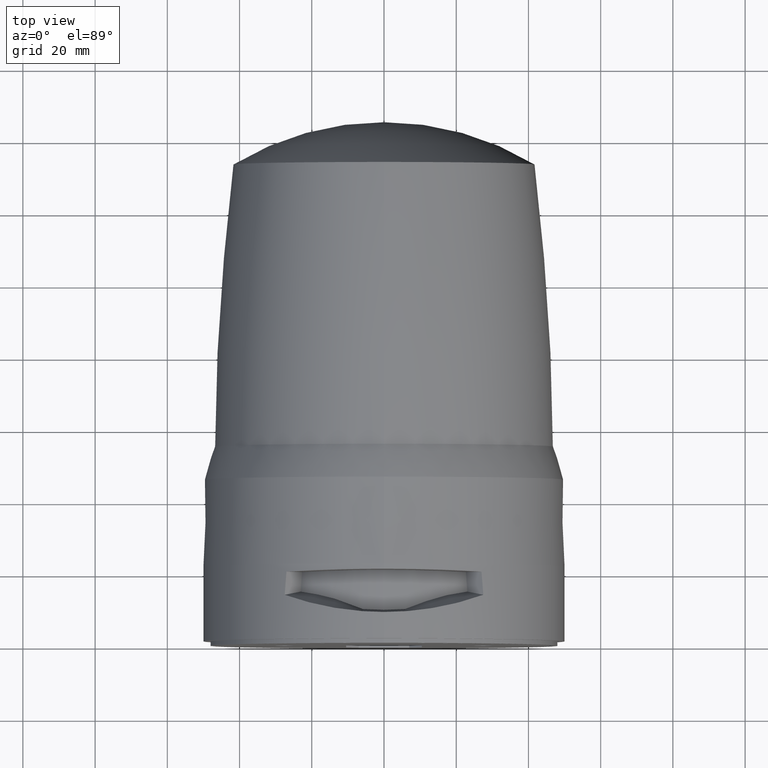
[diagram: clean part render]
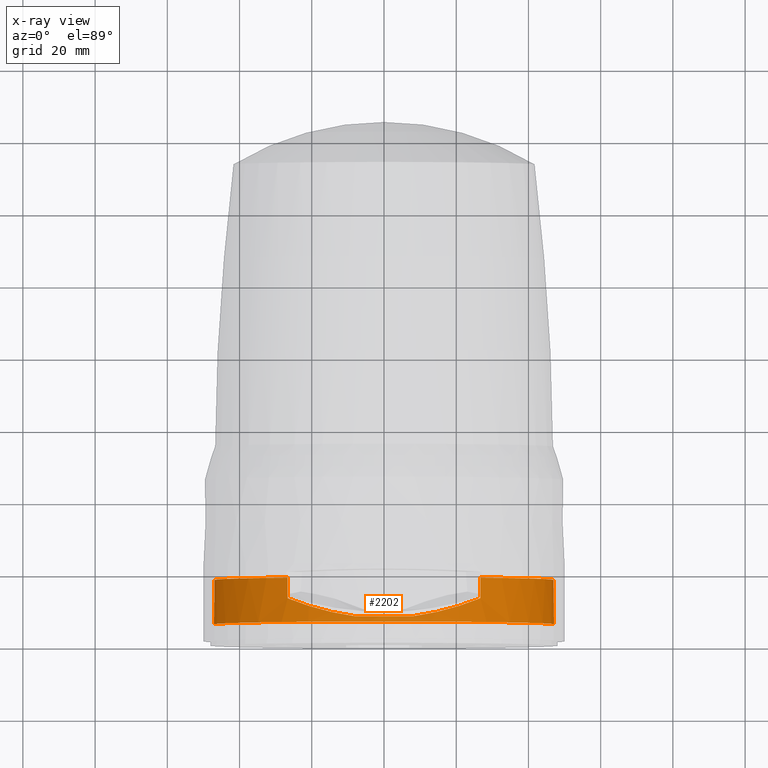
[diagram: x-ray — body ghosted, one internal face saturated and labeled with its STEP entity id]
A machine part, top view, then the same camera in x-ray: the body is ghosted and one INTERNAL B-rep face — a face not visible from any outside direction — is saturated and labeled: STEP entity #2202.
In plain terms, the highlighted conical surface has half-angle 0.5 deg.
Its self-contained STEP definition (entity closure, byte-faithful):
#17 = VERTEX_POINT ( 'NONE', #10055 ) ;
#334 = VERTEX_POINT ( 'NONE', #573 ) ;
#465 = CARTESIAN_POINT ( 'NONE',  ( 8.068156466654869519, 7.362056360975920200, 46.36732097950200426 ) ) ;
#530 = CIRCLE ( 'NONE', #9549, 46.96945596273229739 ) ;
#532 = CARTESIAN_POINT ( 'NONE',  ( -8.070403007079349322, 7.362066601149209966, 46.36692992293319548 ) ) ;
#573 = CARTESIAN_POINT ( 'NONE',  ( -26.71172798787065261, 18.19999999999999929, 38.63435493621015127 ) ) ;
#595 = CARTESIAN_POINT ( 'NONE',  ( -17.94062159174335491, 9.431635815426464120, 43.49089706922463705 ) ) ;
#865 = CARTESIAN_POINT ( 'NONE',  ( 20.78730762843719404, 10.27724571481722471, 42.22889325729695287 ) ) ;
#867 = B_SPLINE_CURVE_WITH_KNOTS ( 'NONE', 3,
 ( #6139, #10349, #901, #13530 ),
 .UNSPECIFIED., .F., .F.,
 ( 4, 4 ),
 ( 0.1122136300888813970, 0.1179470047999371940 ),
 .UNSPECIFIED. ) ;
#875 = CARTESIAN_POINT ( 'NONE',  ( 46.96945596273229739, 18.19999999999999929, 5.925591757886269678E-16 ) ) ;
#901 = CARTESIAN_POINT ( 'NONE',  ( 26.69704003197454867, 16.28917375606690143, 38.66478332520159711 ) ) ;
#938 = VERTEX_POINT ( 'NONE', #4971 ) ;
#1081 = VERTEX_POINT ( 'NONE', #7436 ) ;
#1409 =( BOUNDED_CURVE ( )  B_SPLINE_CURVE ( 3, ( #7199, #8167, #11411, #2932 ),
 .UNSPECIFIED., .F., .F. ) 
 B_SPLINE_CURVE_WITH_KNOTS ( ( 4, 4 ),
 ( 6.110817369497430818, 6.455504782474600134 ),
 .UNSPECIFIED. ) 
 CURVE ( )  GEOMETRIC_REPRESENTATION_ITEM ( )  RATIONAL_B_SPLINE_CURVE ( ( 1.000000000000000000, 0.9901236977437610776, 0.9901236977437610776, 1.000000000000000000 ) ) 
 REPRESENTATION_ITEM ( '' )  );
#1546 = CARTESIAN_POINT ( 'NONE',  ( -4.592996408837750682E-44, 14.69999999999999929, 5.925591757886269678E-16 ) ) ;
#1636 = CARTESIAN_POINT ( 'NONE',  ( -11.30728191937716964, 7.813489942897440699, 45.79953573311116344 ) ) ;
#1698 = CARTESIAN_POINT ( 'NONE',  ( -17.91850772786099810, 9.425420781216693911, 43.50007143824421263 ) ) ;
#1856 = VERTEX_POINT ( 'NONE', #7834 ) ;
#1958 = LINE ( 'NONE', #8099, #10256 ) ;
#2007 = DIRECTION ( 'NONE',  ( 1.000000000000000000, 0.000000000000000000, 0.000000000000000000 ) ) ;
#2098 = CARTESIAN_POINT ( 'NONE',  ( 19.34266681499561713, 9.825573947436152977, 42.90914274113197990 ) ) ;
#2202 = ADVANCED_FACE ( 'NONE', ( #12037 ), #8578, .F. ) ;
#2471 = EDGE_LOOP ( 'NONE', ( #9351, #10546, #9804, #8431, #7520, #2964, #12615, #7238, #13575, #5279 ) ) ;
#2605 = CARTESIAN_POINT ( 'NONE',  ( -14.61698309588898326, 8.499206384008457960, 44.86681348944074443 ) ) ;
#2875 = EDGE_CURVE ( 'NONE', #13379, #334, #530, .T. ) ;
#2895 = CARTESIAN_POINT ( 'NONE',  ( 47.07679643655865220, 5.899999999999999467, 5.925591757886269678E-16 ) ) ;
#2932 = CARTESIAN_POINT ( 'NONE',  ( 8.068156466654869519, 7.362056360975920200, 46.36732097950200426 ) ) ;
#2939 = CARTESIAN_POINT ( 'NONE',  ( 25.19119281023192158, 11.85145429229211977, 39.74880950462495122 ) ) ;
#2964 = ORIENTED_EDGE ( 'NONE', *, *, #4119, .T. ) ;
#3124 = DIRECTION ( 'NONE',  ( 0.000000000000000000, 1.000000000000000000, 0.000000000000000000 ) ) ;
#3282 = EDGE_CURVE ( 'NONE', #9422, #10446, #8898, .T. ) ;
#3381 = EDGE_CURVE ( 'NONE', #8473, #938, #867, .T. ) ;
#3428 = CARTESIAN_POINT ( 'NONE',  ( -26.71172798787065261, 18.19999999999999929, 38.63435493621015127 ) ) ;
#3523 = VECTOR ( 'NONE', #5892, 1000.000000000000114 ) ;
#3562 = CIRCLE ( 'NONE', #10596, 46.96945596273229739 ) ;
#3637 = CARTESIAN_POINT ( 'NONE',  ( 11.34417351153228992, 7.875448661160143971, 45.70399749410995582 ) ) ;
#3703 = CARTESIAN_POINT ( 'NONE',  ( 16.49453011386749424, 9.037742344641761960, 44.06719150023146625 ) ) ;
#3741 = CARTESIAN_POINT ( 'NONE',  ( -47.07679643655865220, 5.899999999999999467, 6.357803982802935763E-15 ) ) ;
#4030 = CARTESIAN_POINT ( 'NONE',  ( 17.75247773063216528, 9.378431158500958986, 43.56859521507095678 ) ) ;
#4119 = EDGE_CURVE ( 'NONE', #1856, #8473, #8857, .T. ) ;
#4157 = AXIS2_PLACEMENT_3D ( 'NONE', #1546, #5823, #8020 ) ;
#4211 = CARTESIAN_POINT ( 'NONE',  ( -46.96945596273229739, 18.19999999999999929, 6.351231274418415680E-15 ) ) ;
#4387 = CARTESIAN_POINT ( 'NONE',  ( -26.66759053786960010, 12.46756921688619890, 38.72558991826590358 ) ) ;
#4672 = CARTESIAN_POINT ( 'NONE',  ( 13.81649625575239604, 8.392109695638167111, 44.98908673091464294 ) ) ;
#4888 = B_SPLINE_CURVE_WITH_KNOTS ( 'NONE', 3,
 ( #3428, #5418, #5354, #4387 ),
 .UNSPECIFIED., .F., .F.,
 ( 4, 4 ),
 ( 0.1100670683433219998, 0.1158003948434853936 ),
 .UNSPECIFIED. ) ;
#4904 = EDGE_CURVE ( 'NONE', #334, #17, #4888, .T. ) ;
#4971 = CARTESIAN_POINT ( 'NONE',  ( 26.71172853925980206, 18.19999999999999929, 38.63435455498054694 ) ) ;
#5069 = DIRECTION ( 'NONE',  ( -0.008726535498371532085, -0.9999619230641713097, 1.068692376572644682E-18 ) ) ;
#5173 = DIRECTION ( 'NONE',  ( 0.000000000000000000, 0.000000000000000000, 1.000000000000000000 ) ) ;
#5279 = ORIENTED_EDGE ( 'NONE', *, *, #3282, .F. ) ;
#5306 = DIRECTION ( 'NONE',  ( 0.000000000000000000, 1.000000000000000000, 0.000000000000000000 ) ) ;
#5308 = EDGE_CURVE ( 'NONE', #13379, #9422, #1958, .T. ) ;
#5354 = CARTESIAN_POINT ( 'NONE',  ( -26.68232711345790165, 14.37837955915132149, 38.69519510356860081 ) ) ;
#5418 = CARTESIAN_POINT ( 'NONE',  ( -26.69703960563555256, 16.28918982065020060, 38.66478344902255060 ) ) ;
#5702 = CARTESIAN_POINT ( 'NONE',  ( -17.90921042412810138, 9.422809711749739137, 43.50392521671429336 ) ) ;
#5823 = DIRECTION ( 'NONE',  ( 0.000000000000000000, -1.000000000000000000, 0.000000000000000000 ) ) ;
#5892 = DIRECTION ( 'NONE',  ( 0.008726535498371532085, -0.9999619230641713097, 0.000000000000000000 ) ) ;
#6035 = CARTESIAN_POINT ( 'NONE',  ( 26.66759071285754956, 12.46752101617195940, 38.72559030849440376 ) ) ;
#6084 = DIRECTION ( 'NONE',  ( 0.000000000000000000, 1.000000000000000000, 0.000000000000000000 ) ) ;
#6106 = CARTESIAN_POINT ( 'NONE',  ( 17.88065520989724888, 9.414298556526986772, 43.51574985520899475 ) ) ;
#6139 = CARTESIAN_POINT ( 'NONE',  ( 26.66759071285754956, 12.46752101617195940, 38.72559030849440376 ) ) ;
#6322 = EDGE_CURVE ( 'NONE', #17, #1081, #7984, .T. ) ;
#6732 = CARTESIAN_POINT ( 'NONE',  ( -20.76545643205895075, 10.28248157912845606, 42.21446350420363558 ) ) ;
#6864 = CARTESIAN_POINT ( 'NONE',  ( -21.49500852309651222, 10.52261537384498524, 41.84601040679098105 ) ) ;
#7054 = LINE ( 'NONE', #13214, #3523 ) ;
#7066 = CARTESIAN_POINT ( 'NONE',  ( 17.90628662131311089, 9.421494172205807871, 43.50514115705107088 ) ) ;
#7138 = CARTESIAN_POINT ( 'NONE',  ( 17.84220610231017901, 9.403515844012112268, 43.53164372360911472 ) ) ;
#7199 = CARTESIAN_POINT ( 'NONE',  ( -8.070403007079349322, 7.362066601149209966, 46.36692992293319548 ) ) ;
#7238 = ORIENTED_EDGE ( 'NONE', *, *, #11564, .T. ) ;
#7436 = CARTESIAN_POINT ( 'NONE',  ( -8.070403007079349322, 7.362066601149209966, 46.36692992293319548 ) ) ;
#7520 = ORIENTED_EDGE ( 'NONE', *, *, #12874, .T. ) ;
#7834 = CARTESIAN_POINT ( 'NONE',  ( 8.068156466654869519, 7.362056360975920200, 46.36732097950200426 ) ) ;
#7840 = CARTESIAN_POINT ( 'NONE',  ( 14.64128959053467227, 8.578954130390822996, 44.72604050961253819 ) ) ;
#7899 = CARTESIAN_POINT ( 'NONE',  ( 17.21373891288812885, 9.230022402093430500, 43.78655262397566617 ) ) ;
#7984 = B_SPLINE_CURVE_WITH_KNOTS ( 'NONE', 3,
 ( #12126, #11989, #10117, #6864, #6732, #9844, #9982, #11156, #8815, #12055, #12256, #9914, #595, #1698, #5702, #2605, #1636, #532 ),
 .UNSPECIFIED., .F., .F.,
 ( 4, 2, 2, 2, 1, 1, 1, 1, 2, 2, 4 ),
 ( 0.000000000000000000, 0.2499999999999912292, 0.3749999999999867883, 0.4374999999999847344, 0.4687499999999835132, 0.4843749999999828471, 0.4921874999999822919, 0.4960937499999817923, 0.4980468749999816258, 0.4999999999999814593, 1.000000000000000000 ),
 .UNSPECIFIED. ) ;
#8020 = DIRECTION ( 'NONE',  ( 1.000000000000000000, 0.000000000000000000, 0.000000000000000000 ) ) ;
#8099 = CARTESIAN_POINT ( 'NONE',  ( -47.00000000000000000, 14.69999999999999929, 6.348399131781187707E-15 ) ) ;
#8167 = CARTESIAN_POINT ( 'NONE',  ( -2.717735621527407108, 7.337664582738626429, 47.29880540989879734 ) ) ;
#8308 = CARTESIAN_POINT ( 'NONE',  ( 17.92089454484693078, 9.425599925071219687, 43.49908648497697783 ) ) ;
#8431 = ORIENTED_EDGE ( 'NONE', *, *, #6322, .T. ) ;
#8436 = EDGE_CURVE ( 'NONE', #13578, #10446, #7054, .T. ) ;
#8473 = VERTEX_POINT ( 'NONE', #10104 ) ;
#8578 = CONICAL_SURFACE ( 'NONE', #4157, 47.00000000000000000, 0.008726646259969245145 ) ;
#8815 = CARTESIAN_POINT ( 'NONE',  ( -18.51721984063122406, 9.595896595908630644, 43.24774014606128247 ) ) ;
#8857 = B_SPLINE_CURVE_WITH_KNOTS ( 'NONE', 3,
 ( #465, #9005, #3637, #4672, #7840, #8939, #3703, #7899, #13224, #4030, #7138, #6106, #7066, #8308, #2098, #865, #10318, #2939, #6035 ),
 .UNSPECIFIED., .F., .F.,
 ( 4, 2, 2, 1, 1, 1, 1, 1, 2, 2, 2, 4 ),
 ( 0.000000000000000000, 0.2499999999999745204, 0.3749999999999616973, 0.4374999999999550915, 0.4687499999999515388, 0.4843749999999497624, 0.4921874999999485967, 0.4960937499999482081, 0.4980468749999480971, 0.4999999999999479305, 0.7499999999999739098, 1.000000000000000000 ),
 .UNSPECIFIED. ) ;
#8898 = CIRCLE ( 'NONE', #12427, 47.07679643655870194 ) ;
#8939 = CARTESIAN_POINT ( 'NONE',  ( 15.87702715608856074, 8.881156917409784413, 44.29318708634006896 ) ) ;
#9005 = CARTESIAN_POINT ( 'NONE',  ( 9.698819395125756415, 7.589504331214729227, 46.08156236389395843 ) ) ;
#9351 = ORIENTED_EDGE ( 'NONE', *, *, #5308, .F. ) ;
#9422 = VERTEX_POINT ( 'NONE', #3741 ) ;
#9549 = AXIS2_PLACEMENT_3D ( 'NONE', #12711, #3124, #12639 ) ;
#9804 = ORIENTED_EDGE ( 'NONE', *, *, #4904, .T. ) ;
#9844 = CARTESIAN_POINT ( 'NONE',  ( -19.68124356428594268, 9.943124356529359886, 42.72835729187758602 ) ) ;
#9914 = CARTESIAN_POINT ( 'NONE',  ( -17.97379871768684012, 9.440968544216444158, 43.47711798485092061 ) ) ;
#9982 = CARTESIAN_POINT ( 'NONE',  ( -19.32152084329770148, 9.833479193908944538, 42.89319221015581718 ) ) ;
#10055 = CARTESIAN_POINT ( 'NONE',  ( -26.66759053786960010, 12.46756921688619890, 38.72558991826590358 ) ) ;
#10104 = CARTESIAN_POINT ( 'NONE',  ( 26.66759071285754956, 12.46752101617195940, 38.72559030849440376 ) ) ;
#10117 = CARTESIAN_POINT ( 'NONE',  ( -23.69724089330580696, 11.28470369694597153, 40.65743047727331572 ) ) ;
#10256 = VECTOR ( 'NONE', #5069, 1000.000000000000114 ) ;
#10318 = CARTESIAN_POINT ( 'NONE',  ( 23.71155996945731914, 11.29018588724521166, 40.64876336409425051 ) ) ;
#10349 = CARTESIAN_POINT ( 'NONE',  ( 26.68232741432935029, 14.37834742770909990, 38.69519523689999119 ) ) ;
#10446 = VERTEX_POINT ( 'NONE', #2895 ) ;
#10546 = ORIENTED_EDGE ( 'NONE', *, *, #2875, .T. ) ;
#10596 = AXIS2_PLACEMENT_3D ( 'NONE', #11467, #6084, #2007 ) ;
#11156 = CARTESIAN_POINT ( 'NONE',  ( -18.78483705226217637, 9.674222317347245692, 43.13111275112264309 ) ) ;
#11411 = CARTESIAN_POINT ( 'NONE',  ( 2.715443926479186754, 7.337661135298455761, 47.29893706232756756 ) ) ;
#11467 = CARTESIAN_POINT ( 'NONE',  ( -4.592996408837750682E-44, 18.19999999999999929, 5.925591757886269678E-16 ) ) ;
#11564 = EDGE_CURVE ( 'NONE', #938, #13578, #3562, .T. ) ;
#11586 = CARTESIAN_POINT ( 'NONE',  ( -4.592996408837750682E-44, 5.899999999999999467, 5.925591757886269678E-16 ) ) ;
#11989 = CARTESIAN_POINT ( 'NONE',  ( -25.18378880314591584, 11.84834516428181672, 39.75394107126135168 ) ) ;
#12037 = FACE_OUTER_BOUND ( 'NONE', #2471, .T. ) ;
#12055 = CARTESIAN_POINT ( 'NONE',  ( -18.20634657548647795, 9.506796342037477032, 43.37980302002817012 ) ) ;
#12126 = CARTESIAN_POINT ( 'NONE',  ( -26.66759053786960010, 12.46756921688619890, 38.72558991826590358 ) ) ;
#12256 = CARTESIAN_POINT ( 'NONE',  ( -18.05125617602751831, 9.462816153720371659, 43.44484391450767191 ) ) ;
#12427 = AXIS2_PLACEMENT_3D ( 'NONE', #11586, #5306, #5173 ) ;
#12615 = ORIENTED_EDGE ( 'NONE', *, *, #3381, .T. ) ;
#12639 = DIRECTION ( 'NONE',  ( 1.000000000000000000, 0.000000000000000000, 0.000000000000000000 ) ) ;
#12711 = CARTESIAN_POINT ( 'NONE',  ( -4.592996408837750682E-44, 18.19999999999999929, 5.925591757886269678E-16 ) ) ;
#12874 = EDGE_CURVE ( 'NONE', #1081, #1856, #1409, .T. ) ;
#13214 = CARTESIAN_POINT ( 'NONE',  ( 47.00000000000000000, 14.69999999999999929, 5.925591757886269678E-16 ) ) ;
#13224 = CARTESIAN_POINT ( 'NONE',  ( 17.57296700369828457, 9.328561695572846091, 43.64196179702143041 ) ) ;
#13379 = VERTEX_POINT ( 'NONE', #4211 ) ;
#13530 = CARTESIAN_POINT ( 'NONE',  ( 26.71172853925980206, 18.19999999999999929, 38.63435455498054694 ) ) ;
#13575 = ORIENTED_EDGE ( 'NONE', *, *, #8436, .T. ) ;
#13578 = VERTEX_POINT ( 'NONE', #875 ) ;